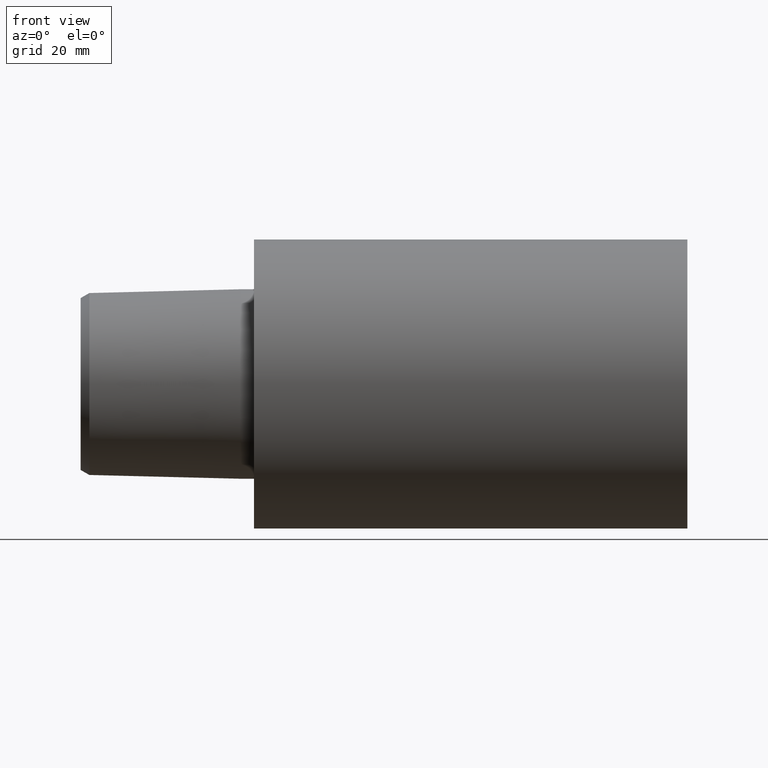
[diagram: clean part render]
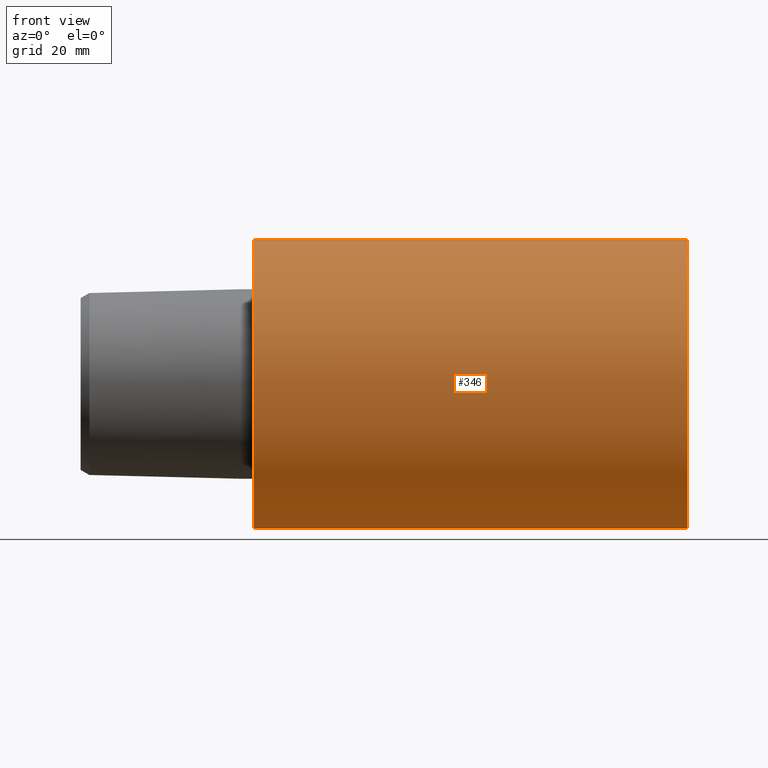
[diagram: same view with one face highlighted and labeled with its STEP entity id]
A machine part, front view. The second image highlights one B-rep face of the part: STEP entity #346.
In plain terms, the highlighted cylindrical surface (partial cylindrical patch) has radius 25 mm, axis along (1, 0, 0).
Its self-contained STEP definition (entity closure, byte-faithful):
#1 = DIRECTION ( 'NONE',  ( 1.000000000000000000, 0.000000000000000000, 0.000000000000000000 ) ) ;
#27 = CARTESIAN_POINT ( 'NONE',  ( 74.99999992349999900, 0.000000000000000000, -24.99999997449999967 ) ) ;
#28 = DIRECTION ( 'NONE',  ( 1.000000000000000000, 0.000000000000000000, 0.000000000000000000 ) ) ;
#34 = VERTEX_POINT ( 'NONE', #353 ) ;
#50 = DIRECTION ( 'NONE',  ( 0.000000000000000000, 0.000000000000000000, -1.000000000000000000 ) ) ;
#51 = DIRECTION ( 'NONE',  ( 1.000000000000000000, 0.000000000000000000, 0.000000000000000000 ) ) ;
#54 = VECTOR ( 'NONE', #28, 1000.000000000000000 ) ;
#70 = EDGE_CURVE ( 'NONE', #310, #34, #175, .T. ) ;
#71 = ORIENTED_EDGE ( 'NONE', *, *, #157, .T. ) ;
#86 = CARTESIAN_POINT ( 'NONE',  ( 74.99999992349999900, 0.000000000000000000, 0.000000000000000000 ) ) ;
#94 = CARTESIAN_POINT ( 'NONE',  ( 74.99999992349999900, 0.000000000000000000, 0.000000000000000000 ) ) ;
#111 = CARTESIAN_POINT ( 'NONE',  ( 74.99999992349999900, 0.000000000000000000, -24.99999997449999967 ) ) ;
#119 = VECTOR ( 'NONE', #1, 1000.000000000000000 ) ;
#126 = CIRCLE ( 'NONE', #259, 24.99999997449999967 ) ;
#142 = DIRECTION ( 'NONE',  ( 1.000000000000000000, 0.000000000000000000, 0.000000000000000000 ) ) ;
#149 = DIRECTION ( 'NONE',  ( 0.000000000000000000, 0.000000000000000000, -1.000000000000000000 ) ) ;
#150 = EDGE_CURVE ( 'NONE', #199, #220, #126, .T. ) ;
#157 = EDGE_CURVE ( 'NONE', #34, #220, #355, .T. ) ;
#166 = LINE ( 'NONE', #330, #54 ) ;
#168 = DIRECTION ( 'NONE',  ( 1.000000000000000000, 0.000000000000000000, 0.000000000000000000 ) ) ;
#169 = CARTESIAN_POINT ( 'NONE',  ( 74.99999992349999900, 3.061616994745535943E-15, 24.99999997449999967 ) ) ;
#175 = CIRCLE ( 'NONE', #342, 24.99999997449999967 ) ;
#193 = EDGE_CURVE ( 'NONE', #310, #199, #166, .T. ) ;
#197 = AXIS2_PLACEMENT_3D ( 'NONE', #94, #142, #149 ) ;
#199 = VERTEX_POINT ( 'NONE', #169 ) ;
#213 = CARTESIAN_POINT ( 'NONE',  ( 0.000000000000000000, 3.061616994745535943E-15, 24.99999997449999967 ) ) ;
#216 = DIRECTION ( 'NONE',  ( 0.000000000000000000, 0.000000000000000000, -1.000000000000000000 ) ) ;
#220 = VERTEX_POINT ( 'NONE', #111 ) ;
#233 = CARTESIAN_POINT ( 'NONE',  ( 0.000000000000000000, 0.000000000000000000, 0.000000000000000000 ) ) ;
#250 = CYLINDRICAL_SURFACE ( 'NONE', #197, 24.99999997449999967 ) ;
#259 = AXIS2_PLACEMENT_3D ( 'NONE', #86, #168, #216 ) ;
#296 = ORIENTED_EDGE ( 'NONE', *, *, #150, .F. ) ;
#310 = VERTEX_POINT ( 'NONE', #213 ) ;
#312 = FACE_OUTER_BOUND ( 'NONE', #316, .T. ) ;
#316 = EDGE_LOOP ( 'NONE', ( #338, #329, #71, #296 ) ) ;
#329 = ORIENTED_EDGE ( 'NONE', *, *, #70, .T. ) ;
#330 = CARTESIAN_POINT ( 'NONE',  ( 74.99999992349999900, 3.061616994745535943E-15, 24.99999997449999967 ) ) ;
#338 = ORIENTED_EDGE ( 'NONE', *, *, #193, .F. ) ;
#342 = AXIS2_PLACEMENT_3D ( 'NONE', #233, #51, #50 ) ;
#346 = ADVANCED_FACE ( 'NONE', ( #312 ), #250, .T. ) ;
#353 = CARTESIAN_POINT ( 'NONE',  ( 0.000000000000000000, 0.000000000000000000, -24.99999997449999967 ) ) ;
#355 = LINE ( 'NONE', #27, #119 ) ;